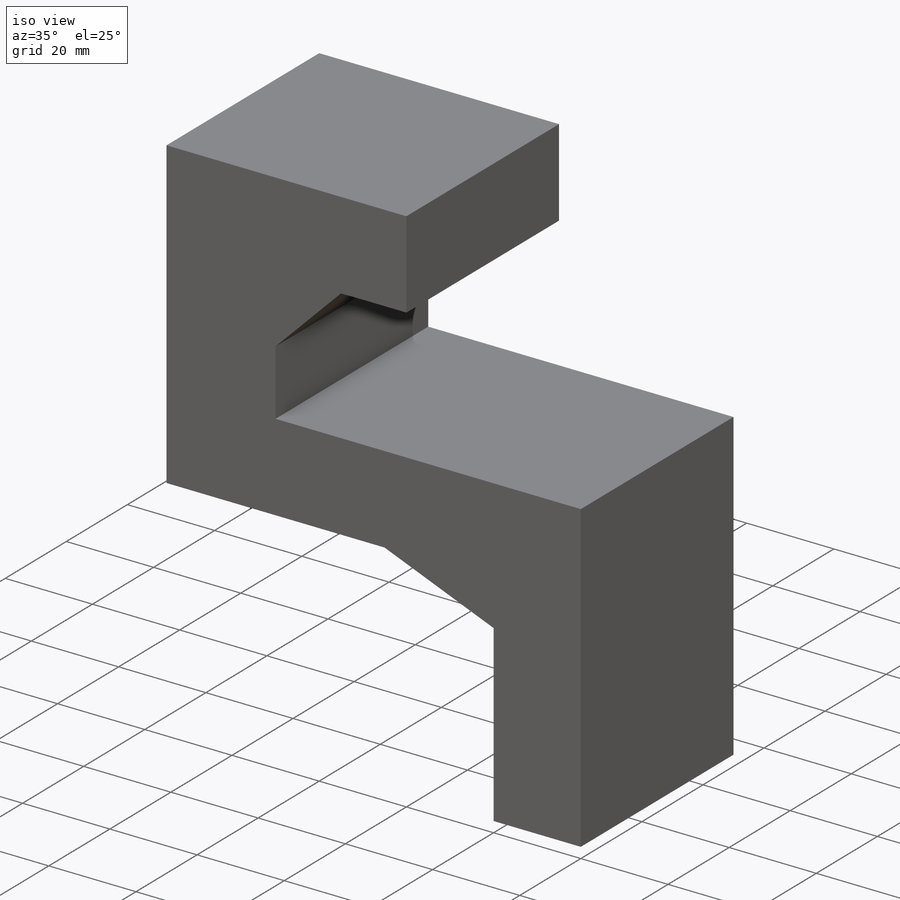
[diagram: iso view]
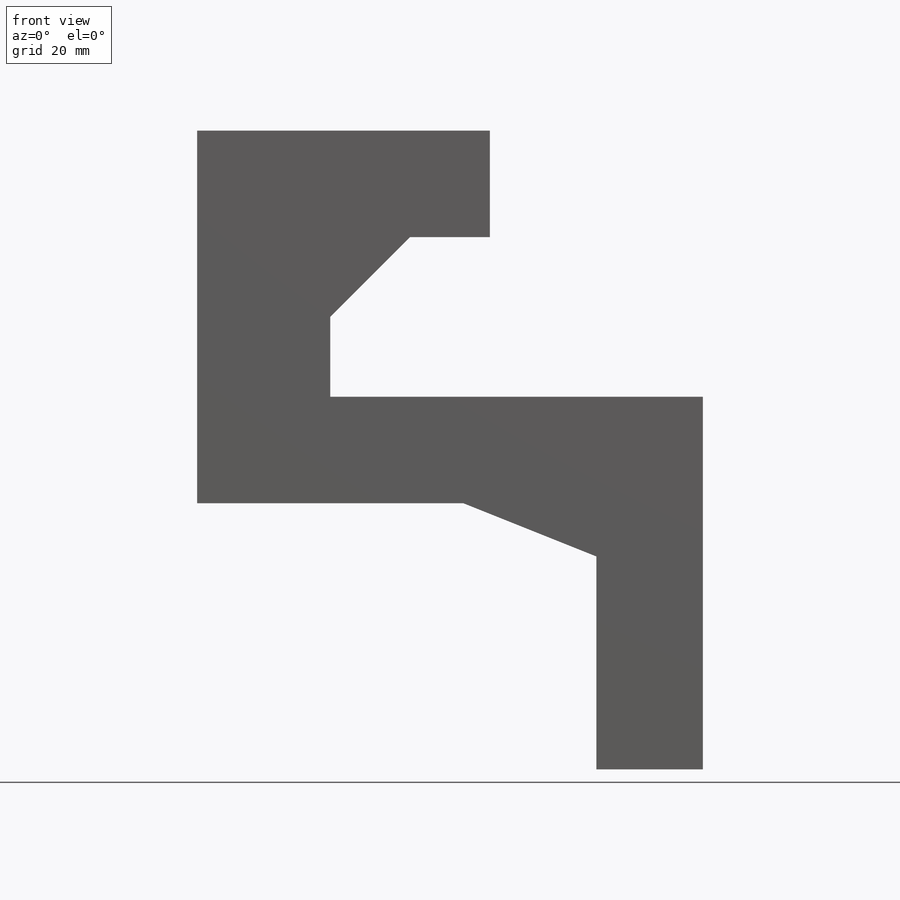
[diagram: front view]
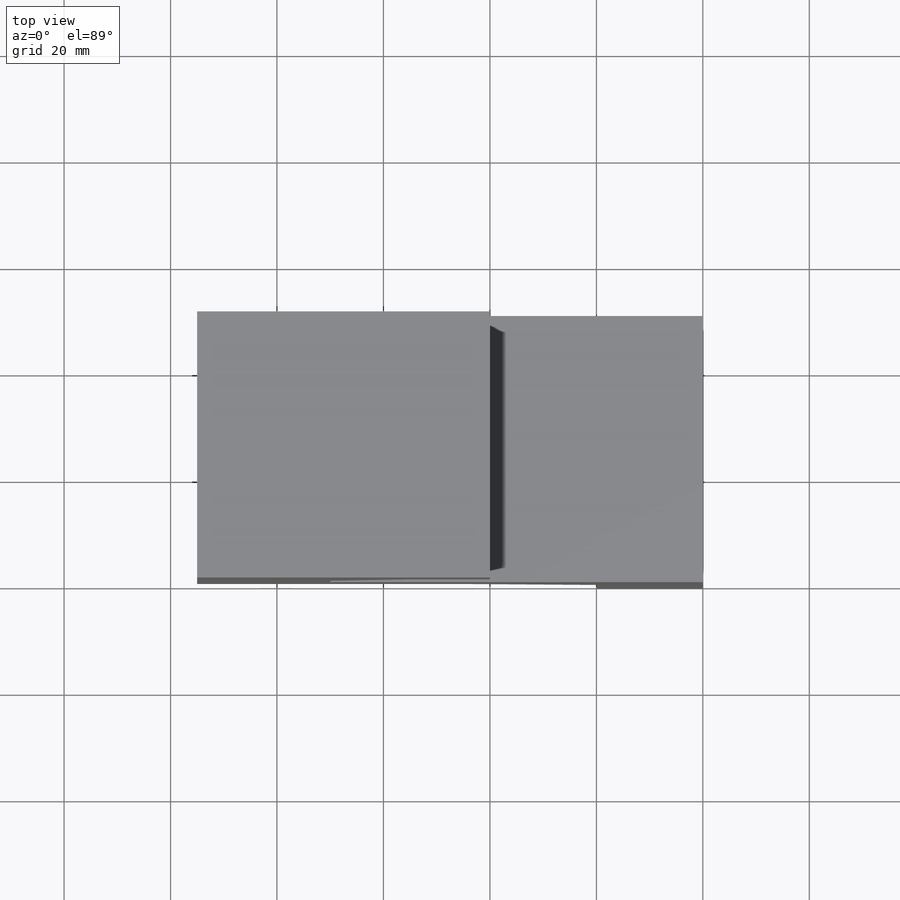
[diagram: top view]
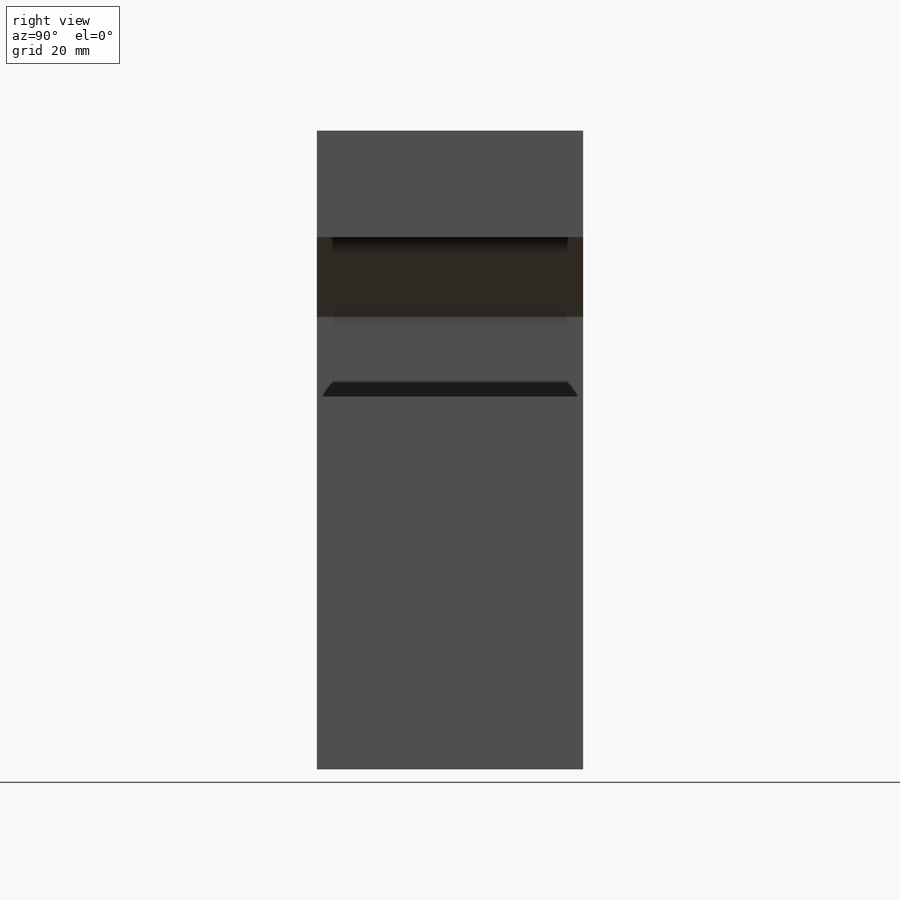
[diagram: right view]
SOLIDWORKS PART (.sldprt)
format: sldprt  version: not decoded by parser v0  size: 169,984 bytes
history: native  units: mm
features: plane x3, sketch x3, extrude x3, material x1 (+10 scaffold rows collapsed)
feature tree (20):
  scaffold x10  (default folders/planes/origin — collapsed)
  material  "Matériau <non spécifié>"
  plane  "Plan de face"
  plane  "Plan de dessus"
  plane  "Plan de droite"
  sketch  "Esquisse1"  dims[c1.D1=20.0mm c1.D2=20.0mm c1.D3=30.0mm c1.D4=70.0mm c1.D5=50.0mm c1.D6=55.0mm c1.D7=70.0mm c1.D8=75.0mm c1.D9=40.0mm c1.D10=30.0mm c1.D11=~46.745506mm c2.D9=20.0mm]
  extrude  "Boss.-Extru.1"  Depth=50mm
  sketch  "Esquisse3"  dims[c1.D1=15.0mm c1.D2=20.0mm c1.D3=25.0mm c1.D4=40.0mm c1.D5=10.0mm c2.D1=15.0mm c2.D2=15.0mm c2.D5=10.0mm c2.D6=20.0mm]
  extrude  "Boss.-Extru.2"  Depth=50mm
  extrude  "Boss.-Extru.3"  [1 undecoded]
  sketch  "Esquisse3<4>"  dims[D1=50.0mm]
decode coverage: 5 of 6 modeling features carry decoded parameters
note: ~ marks probable driven/reference dimensions
note: 1 parameter value undecoded
note: suppression state not decoded; provenance and decode notes live in map.json
